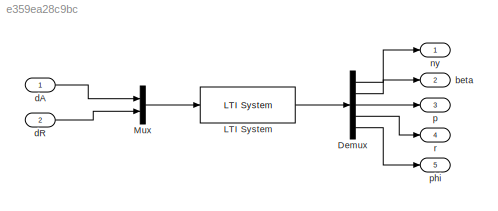
MODEL slx_e359ea28c9bc
KIND model
CONFIG AbsTol = auto
CONFIG EnableMultiTasking = off
CONFIG FixedStep = auto
CONFIG MaxStep = auto
CONFIG MinStep = auto
CONFIG RelTol = 1e-3
CONFIG SampleTimeConstraint = Unconstrained
CONFIG SolverName = VariableStepAuto
CONFIG StartTime = 0.0
CONFIG StopTime = 10.0
BLOCK [Demux] Demux
  Outputs = 5
BLOCK [Reference] LTI System  REF=cstblocks/LTI System
  SourceBlock = cstblocks/LTI System
  SourceType = LTI Block
BLOCK [Mux] Mux
  DisplayOption = bar
  Inputs = 2
BLOCK [Outport] beta
  Port = 2
BLOCK [Inport] dA
BLOCK [Inport] dR
  Port = 2
BLOCK [Outport] ny
BLOCK [Outport] p
  Port = 3
BLOCK [Outport] phi
  Port = 5
BLOCK [Outport] r
  Port = 4
LINE Demux:1 -> ny:1
LINE Demux:2 -> beta:1
LINE Demux:3 -> p:1
LINE Demux:4 -> r:1
LINE Demux:5 -> phi:1
LINE LTI System:1 -> Demux:1
LINE Mux:1 -> LTI System:1
LINE dA:1 -> Mux:1
LINE dR:1 -> Mux:2
